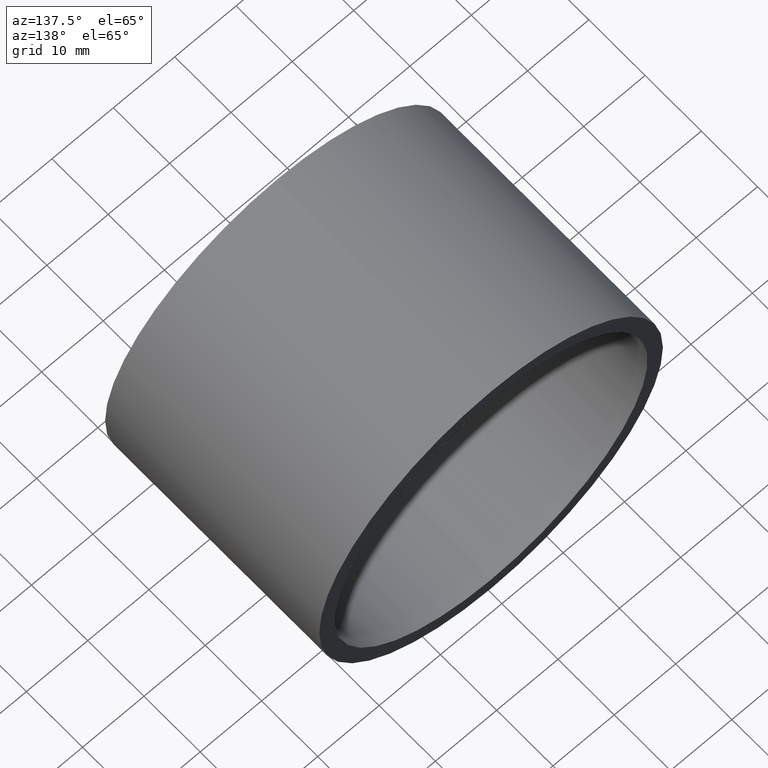
[diagram: clean part render]
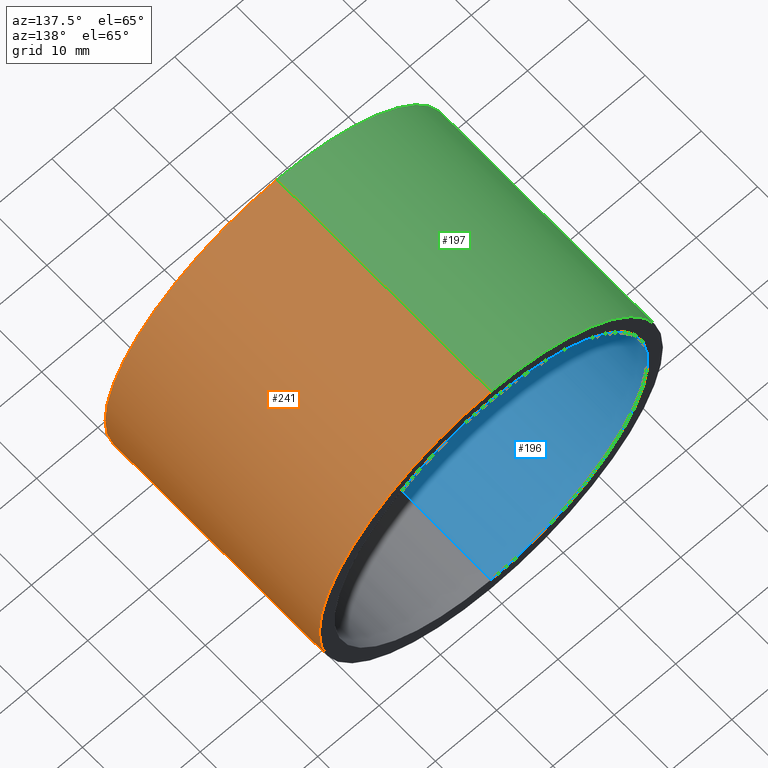
[diagram: same view with three faces highlighted in distinct colors, each labeled with its STEP entity id]
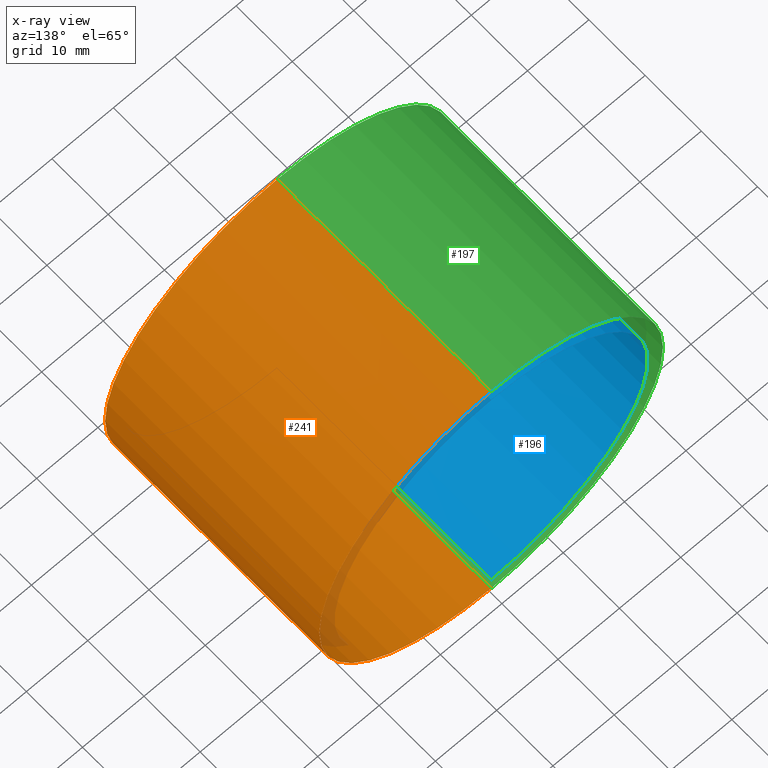
[diagram: x-ray of the same camera — body ghosted, the three highlighted faces saturated]
A machine part, auxiliary view with three faces highlighted in distinct colors.
The next image is the same camera in x-ray (body ghosted, the three faces saturated) — at least one of them is partly hidden behind the body in this view.
Their STEP definitions:

[orange] entity #241 — the highlighted cylindrical surface (partial cylindrical patch) has radius 28 mm, axis along (-0, 1, -0).
#1 = EDGE_CURVE ( 'NONE', #181, #240, #42, .T. ) ;
#5 = DIRECTION ( 'NONE',  ( 0.0000000000000000000, 0.0000000000000000000, 1.000000000000000000 ) ) ;
#18 = DIRECTION ( 'NONE',  ( -0.0000000000000000000, 1.000000000000000000, -0.0000000000000000000 ) ) ;
#20 = CARTESIAN_POINT ( 'NONE',  ( 0.0000000000000000000, -2.775557561562891400E-014, 28.00000000000002100 ) ) ;
#23 = CARTESIAN_POINT ( 'NONE',  ( 0.0000000000000000000, 38.09999999999999400, 0.0000000000000000000 ) ) ;
#24 = VECTOR ( 'NONE', #18, 1000.000000000000000 ) ;
#29 = DIRECTION ( 'NONE',  ( 0.0000000000000000000, 0.0000000000000000000, 1.000000000000000000 ) ) ;
#34 = CARTESIAN_POINT ( 'NONE',  ( 3.429011037612591600E-015, -2.775557561562891400E-014, -28.00000000000002100 ) ) ;
#42 = CIRCLE ( 'NONE', #92, 28.00000000000002100 ) ;
#43 = DIRECTION ( 'NONE',  ( -0.0000000000000000000, 1.000000000000000000, -0.0000000000000000000 ) ) ;
#52 = CARTESIAN_POINT ( 'NONE',  ( 0.0000000000000000000, 161.3761669434274500, 0.0000000000000000000 ) ) ;
#57 = DIRECTION ( 'NONE',  ( 0.0000000000000000000, 0.0000000000000000000, 1.000000000000000000 ) ) ;
#61 = DIRECTION ( 'NONE',  ( -0.0000000000000000000, 1.000000000000000000, -0.0000000000000000000 ) ) ;
#65 = EDGE_CURVE ( 'NONE', #207, #181, #217, .T. ) ;
#75 = ORIENTED_EDGE ( 'NONE', *, *, #219, .T. ) ;
#77 = DIRECTION ( 'NONE',  ( -0.0000000000000000000, 1.000000000000000000, -0.0000000000000000000 ) ) ;
#92 = AXIS2_PLACEMENT_3D ( 'NONE', #23, #43, #57 ) ;
#98 = ORIENTED_EDGE ( 'NONE', *, *, #173, .T. ) ;
#101 = DIRECTION ( 'NONE',  ( -0.0000000000000000000, 1.000000000000000000, -0.0000000000000000000 ) ) ;
#102 = CARTESIAN_POINT ( 'NONE',  ( 3.429011037612591600E-015, 161.3761669434274500, -28.00000000000002100 ) ) ;
#116 = CIRCLE ( 'NONE', #179, 28.00000000000002100 ) ;
#118 = ORIENTED_EDGE ( 'NONE', *, *, #65, .F. ) ;
#123 = LINE ( 'NONE', #102, #24 ) ;
#124 = CARTESIAN_POINT ( 'NONE',  ( 3.429011037612591600E-015, 38.09999999999999400, -28.00000000000002100 ) ) ;
#134 = VECTOR ( 'NONE', #61, 1000.000000000000000 ) ;
#141 = EDGE_LOOP ( 'NONE', ( #98, #75, #220, #118 ) ) ;
#159 = FACE_OUTER_BOUND ( 'NONE', #141, .T. ) ;
#170 = CARTESIAN_POINT ( 'NONE',  ( 0.0000000000000000000, 161.3761669434274500, 28.00000000000002100 ) ) ;
#173 = EDGE_CURVE ( 'NONE', #207, #229, #116, .T. ) ;
#175 = CARTESIAN_POINT ( 'NONE',  ( 0.0000000000000000000, 38.09999999999999400, 28.00000000000002100 ) ) ;
#179 = AXIS2_PLACEMENT_3D ( 'NONE', #200, #77, #29 ) ;
#181 = VERTEX_POINT ( 'NONE', #175 ) ;
#200 = CARTESIAN_POINT ( 'NONE',  ( 0.0000000000000000000, -2.775557561562891400E-014, 0.0000000000000000000 ) ) ;
#206 = CYLINDRICAL_SURFACE ( 'NONE', #244, 28.00000000000002100 ) ;
#207 = VERTEX_POINT ( 'NONE', #20 ) ;
#217 = LINE ( 'NONE', #170, #134 ) ;
#219 = EDGE_CURVE ( 'NONE', #229, #240, #123, .T. ) ;
#220 = ORIENTED_EDGE ( 'NONE', *, *, #1, .F. ) ;
#229 = VERTEX_POINT ( 'NONE', #34 ) ;
#240 = VERTEX_POINT ( 'NONE', #124 ) ;
#241 = ADVANCED_FACE ( 'NONE', ( #159 ), #206, .T. ) ;
#244 = AXIS2_PLACEMENT_3D ( 'NONE', #52, #101, #5 ) ;

[blue] entity #196 — the highlighted cylindrical surface (partial cylindrical patch) has radius 25.5 mm, axis along (-0, 1, -0).
#8 = CARTESIAN_POINT ( 'NONE',  ( 3.122849337825752200E-015, 38.09999999999999400, -25.50000000000001100 ) ) ;
#11 = VERTEX_POINT ( 'NONE', #8 ) ;
#27 = EDGE_CURVE ( 'NONE', #11, #31, #99, .T. ) ;
#28 = ORIENTED_EDGE ( 'NONE', *, *, #209, .F. ) ;
#30 = CYLINDRICAL_SURFACE ( 'NONE', #130, 25.50000000000001400 ) ;
#31 = VERTEX_POINT ( 'NONE', #215 ) ;
#40 = VERTEX_POINT ( 'NONE', #133 ) ;
#51 = LINE ( 'NONE', #202, #144 ) ;
#56 = DIRECTION ( 'NONE',  ( 0.0000000000000000000, 0.0000000000000000000, 1.000000000000000000 ) ) ;
#58 = DIRECTION ( 'NONE',  ( 0.0000000000000000000, 0.0000000000000000000, 1.000000000000000000 ) ) ;
#64 = CARTESIAN_POINT ( 'NONE',  ( 3.122849337825752600E-015, 161.3761669434274500, -25.50000000000001400 ) ) ;
#70 = FACE_OUTER_BOUND ( 'NONE', #125, .T. ) ;
#79 = DIRECTION ( 'NONE',  ( -0.0000000000000000000, 1.000000000000000000, -0.0000000000000000000 ) ) ;
#85 = DIRECTION ( 'NONE',  ( -0.0000000000000000000, 1.000000000000000000, -0.0000000000000000000 ) ) ;
#89 = VERTEX_POINT ( 'NONE', #212 ) ;
#99 = CIRCLE ( 'NONE', #201, 25.50000000000001100 ) ;
#107 = LINE ( 'NONE', #64, #211 ) ;
#109 = EDGE_CURVE ( 'NONE', #89, #11, #107, .T. ) ;
#112 = DIRECTION ( 'NONE',  ( -0.0000000000000000000, 1.000000000000000000, -0.0000000000000000000 ) ) ;
#113 = ORIENTED_EDGE ( 'NONE', *, *, #194, .F. ) ;
#114 = DIRECTION ( 'NONE',  ( -0.0000000000000000000, 1.000000000000000000, -0.0000000000000000000 ) ) ;
#125 = EDGE_LOOP ( 'NONE', ( #28, #169, #172, #113 ) ) ;
#130 = AXIS2_PLACEMENT_3D ( 'NONE', #223, #85, #186 ) ;
#133 = CARTESIAN_POINT ( 'NONE',  ( 0.0000000000000000000, -2.775557561562891400E-014, 25.50000000000001400 ) ) ;
#142 = AXIS2_PLACEMENT_3D ( 'NONE', #149, #148, #56 ) ;
#144 = VECTOR ( 'NONE', #79, 1000.000000000000000 ) ;
#148 = DIRECTION ( 'NONE',  ( -0.0000000000000000000, 1.000000000000000000, -0.0000000000000000000 ) ) ;
#149 = CARTESIAN_POINT ( 'NONE',  ( 0.0000000000000000000, -2.775557561562891400E-014, 0.0000000000000000000 ) ) ;
#169 = ORIENTED_EDGE ( 'NONE', *, *, #109, .T. ) ;
#172 = ORIENTED_EDGE ( 'NONE', *, *, #27, .T. ) ;
#186 = DIRECTION ( 'NONE',  ( 0.0000000000000000000, 0.0000000000000000000, 1.000000000000000000 ) ) ;
#194 = EDGE_CURVE ( 'NONE', #40, #31, #51, .T. ) ;
#196 = ADVANCED_FACE ( 'NONE', ( #70 ), #30, .F. ) ;
#201 = AXIS2_PLACEMENT_3D ( 'NONE', #216, #114, #58 ) ;
#202 = CARTESIAN_POINT ( 'NONE',  ( 0.0000000000000000000, 161.3761669434274500, 25.50000000000001400 ) ) ;
#209 = EDGE_CURVE ( 'NONE', #89, #40, #224, .T. ) ;
#211 = VECTOR ( 'NONE', #112, 1000.000000000000000 ) ;
#212 = CARTESIAN_POINT ( 'NONE',  ( 3.122849337825752600E-015, -2.775557561562891400E-014, -25.50000000000001400 ) ) ;
#215 = CARTESIAN_POINT ( 'NONE',  ( 0.0000000000000000000, 38.09999999999999400, 25.50000000000001100 ) ) ;
#216 = CARTESIAN_POINT ( 'NONE',  ( 0.0000000000000000000, 38.09999999999999400, 0.0000000000000000000 ) ) ;
#223 = CARTESIAN_POINT ( 'NONE',  ( 0.0000000000000000000, 161.3761669434274500, 0.0000000000000000000 ) ) ;
#224 = CIRCLE ( 'NONE', #142, 25.50000000000001400 ) ;

[green] entity #197 — the highlighted cylindrical surface (partial cylindrical patch) has radius 28 mm, axis along (-0, 1, -0).
#13 = CARTESIAN_POINT ( 'NONE',  ( 0.0000000000000000000, 38.09999999999999400, 0.0000000000000000000 ) ) ;
#17 = CIRCLE ( 'NONE', #72, 28.00000000000002100 ) ;
#18 = DIRECTION ( 'NONE',  ( -0.0000000000000000000, 1.000000000000000000, -0.0000000000000000000 ) ) ;
#19 = CYLINDRICAL_SURFACE ( 'NONE', #163, 28.00000000000002100 ) ;
#20 = CARTESIAN_POINT ( 'NONE',  ( 0.0000000000000000000, -2.775557561562891400E-014, 28.00000000000002100 ) ) ;
#24 = VECTOR ( 'NONE', #18, 1000.000000000000000 ) ;
#32 = CARTESIAN_POINT ( 'NONE',  ( 0.0000000000000000000, -2.775557561562891400E-014, 0.0000000000000000000 ) ) ;
#34 = CARTESIAN_POINT ( 'NONE',  ( 3.429011037612591600E-015, -2.775557561562891400E-014, -28.00000000000002100 ) ) ;
#61 = DIRECTION ( 'NONE',  ( -0.0000000000000000000, 1.000000000000000000, -0.0000000000000000000 ) ) ;
#65 = EDGE_CURVE ( 'NONE', #207, #181, #217, .T. ) ;
#72 = AXIS2_PLACEMENT_3D ( 'NONE', #32, #239, #115 ) ;
#78 = EDGE_CURVE ( 'NONE', #240, #181, #205, .T. ) ;
#80 = ORIENTED_EDGE ( 'NONE', *, *, #78, .F. ) ;
#102 = CARTESIAN_POINT ( 'NONE',  ( 3.429011037612591600E-015, 161.3761669434274500, -28.00000000000002100 ) ) ;
#111 = DIRECTION ( 'NONE',  ( 0.0000000000000000000, 0.0000000000000000000, 1.000000000000000000 ) ) ;
#115 = DIRECTION ( 'NONE',  ( 0.0000000000000000000, 0.0000000000000000000, 1.000000000000000000 ) ) ;
#123 = LINE ( 'NONE', #102, #24 ) ;
#124 = CARTESIAN_POINT ( 'NONE',  ( 3.429011037612591600E-015, 38.09999999999999400, -28.00000000000002100 ) ) ;
#134 = VECTOR ( 'NONE', #61, 1000.000000000000000 ) ;
#135 = DIRECTION ( 'NONE',  ( -0.0000000000000000000, 1.000000000000000000, -0.0000000000000000000 ) ) ;
#147 = DIRECTION ( 'NONE',  ( 0.0000000000000000000, 0.0000000000000000000, 1.000000000000000000 ) ) ;
#163 = AXIS2_PLACEMENT_3D ( 'NONE', #185, #208, #147 ) ;
#170 = CARTESIAN_POINT ( 'NONE',  ( 0.0000000000000000000, 161.3761669434274500, 28.00000000000002100 ) ) ;
#175 = CARTESIAN_POINT ( 'NONE',  ( 0.0000000000000000000, 38.09999999999999400, 28.00000000000002100 ) ) ;
#177 = FACE_OUTER_BOUND ( 'NONE', #218, .T. ) ;
#178 = ORIENTED_EDGE ( 'NONE', *, *, #219, .F. ) ;
#180 = EDGE_CURVE ( 'NONE', #229, #207, #17, .T. ) ;
#181 = VERTEX_POINT ( 'NONE', #175 ) ;
#185 = CARTESIAN_POINT ( 'NONE',  ( 0.0000000000000000000, 161.3761669434274500, 0.0000000000000000000 ) ) ;
#197 = ADVANCED_FACE ( 'NONE', ( #177 ), #19, .T. ) ;
#205 = CIRCLE ( 'NONE', #222, 28.00000000000002100 ) ;
#207 = VERTEX_POINT ( 'NONE', #20 ) ;
#208 = DIRECTION ( 'NONE',  ( -0.0000000000000000000, 1.000000000000000000, -0.0000000000000000000 ) ) ;
#217 = LINE ( 'NONE', #170, #134 ) ;
#218 = EDGE_LOOP ( 'NONE', ( #178, #243, #225, #80 ) ) ;
#219 = EDGE_CURVE ( 'NONE', #229, #240, #123, .T. ) ;
#222 = AXIS2_PLACEMENT_3D ( 'NONE', #13, #135, #111 ) ;
#225 = ORIENTED_EDGE ( 'NONE', *, *, #65, .T. ) ;
#229 = VERTEX_POINT ( 'NONE', #34 ) ;
#239 = DIRECTION ( 'NONE',  ( -0.0000000000000000000, 1.000000000000000000, -0.0000000000000000000 ) ) ;
#240 = VERTEX_POINT ( 'NONE', #124 ) ;
#243 = ORIENTED_EDGE ( 'NONE', *, *, #180, .T. ) ;